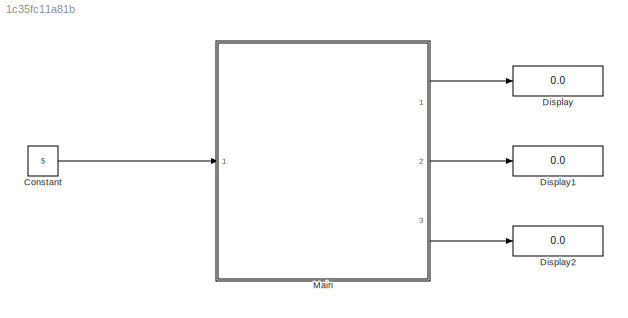
MODEL slx_1c35fc11a81b
KIND model
CONFIG AbsTol = auto
CONFIG EnableMultiTasking = off
CONFIG FixedStep = auto
CONFIG MaxStep = auto
CONFIG MinStep = auto
CONFIG PreLoadFcn = try, eval([bdroot '_setup']); catch, eval('MultiUser_setup', ''); end
CONFIG RelTol = 1e-3
CONFIG SampleTimeConstraint = Unconstrained
CONFIG Solver = VariableStepAuto
CONFIG SolverName = VariableStepAuto
CONFIG StartTime = 0.0
CONFIG StopTime = inf
BLOCK [Constant] Constant
  Value = 5
BLOCK [Display] Display
  Decimation = 1
  Ports = [1]
BLOCK [Display] Display1
  Decimation = 1
  Ports = [1]
BLOCK [Display] Display2
  Decimation = 1
  Ports = [1]
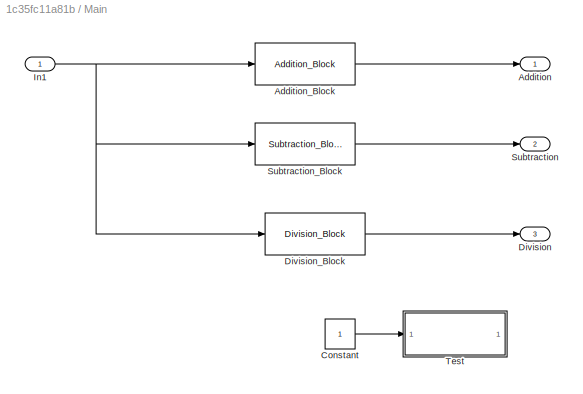
BLOCK [SubSystem] Main
  Ports = [1, 3]
  RequestExecContextInheritance = off
  Variant = off
BLOCK [Outport] Main/Addition
  IconDisplay = Port number
BLOCK [Reference] Main/Addition_Block  REF=MultiUser_Lib/Addition_Block
  Ports = [1, 1]
  SourceBlock = MultiUser_Lib/Addition_Block
  SourceType = SubSystem
BLOCK [Constant] Main/Constant
BLOCK [Outport] Main/Division
  IconDisplay = Port number
  Port = 3
BLOCK [Reference] Main/Division_Block  REF=MultiUser_Lib/Division_Block
  Ports = [1, 1]
  SourceBlock = MultiUser_Lib/Division_Block
  SourceType = SubSystem
BLOCK [Inport] Main/In1
  IconDisplay = Port number
BLOCK [Outport] Main/Subtraction
  IconDisplay = Port number
  Port = 2
BLOCK [Reference] Main/Subtraction_Block  REF=MultiUser_Lib/Subtraction_Block
  Ports = [1, 1]
  SourceBlock = MultiUser_Lib/Subtraction_Block
  SourceType = SubSystem
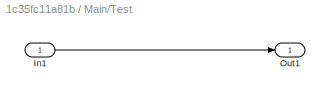
BLOCK [SubSystem] Main/Test
  Ports = [1, 1]
  RequestExecContextInheritance = off
  Variant = off
BLOCK [Inport] Main/Test/In1
  IconDisplay = Port number
BLOCK [Outport] Main/Test/Out1
  IconDisplay = Port number
LINE Constant:1 -> Main:1
LINE Main/Addition_Block:1 -> Main/Addition:1
LINE Main/Constant:1 -> Main/Test:1
LINE Main/Division_Block:1 -> Main/Division:1
NET Main/In1:1 -> Main/Addition_Block:1, Main/Division_Block:1, Main/Subtraction_Block:1
LINE Main/Subtraction_Block:1 -> Main/Subtraction:1
LINE Main/Test/In1:1 -> Main/Test/Out1:1
LINE Main:1 -> Display:1
LINE Main:2 -> Display1:1
LINE Main:3 -> Display2:1
note: NET lines group one-source signal fan-out (src -> all destinations, sorted); 1:1 wires keep LINE
